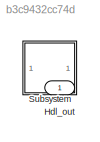
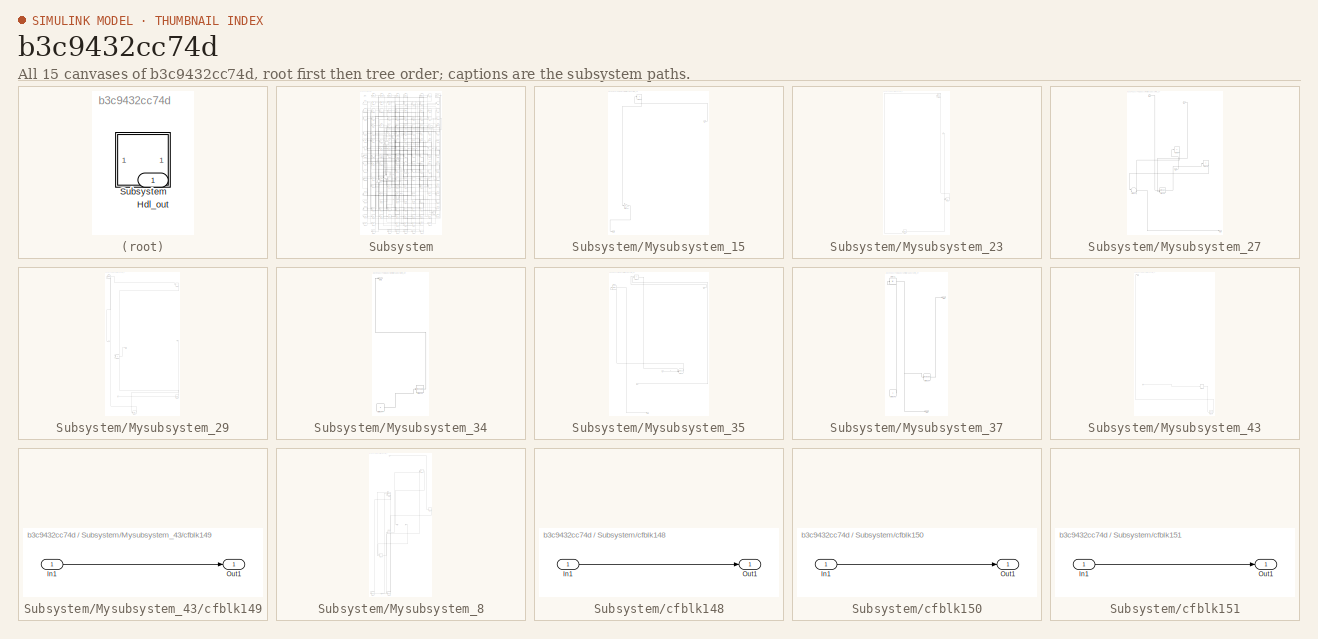
[diagram: thumbnail index - all 15 canvases of the model, root first then tree order]
MODEL slx_b3c9432cc74d
KIND model
CONFIG AbsTol = auto
CONFIG EnableMultiTasking = off
CONFIG FixedStep = auto
CONFIG MaxStep = auto
CONFIG MinStep = auto
CONFIG RelTol = 1e-3
CONFIG SampleTimeConstraint = Unconstrained
CONFIG SolverName = VariableStepAuto
CONFIG StartTime = 0.0
CONFIG StopTime = 10.0
BLOCK [Outport] Hdl_out
  OutDataTypeStr = uint8
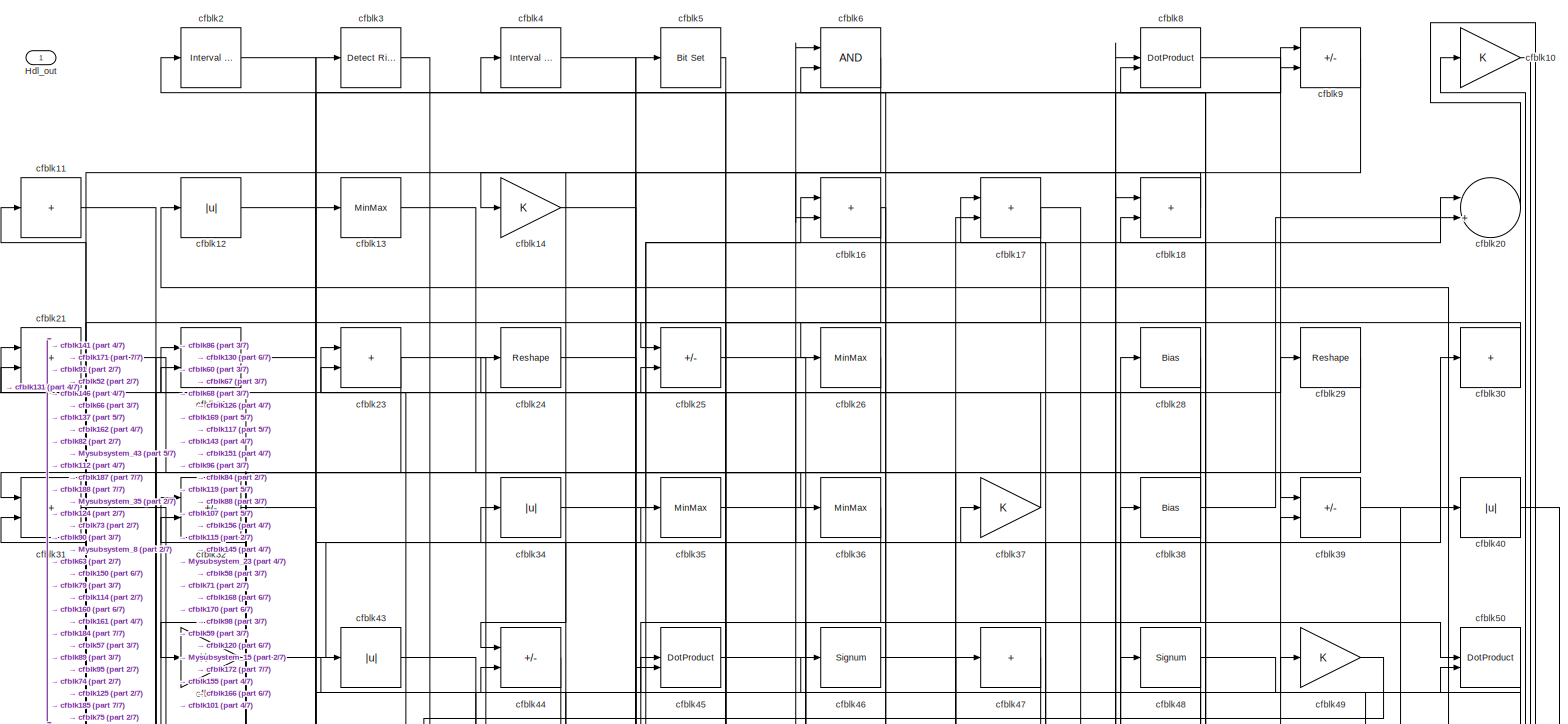
[diagram: Subsystem - part 1/7, full width, top band]
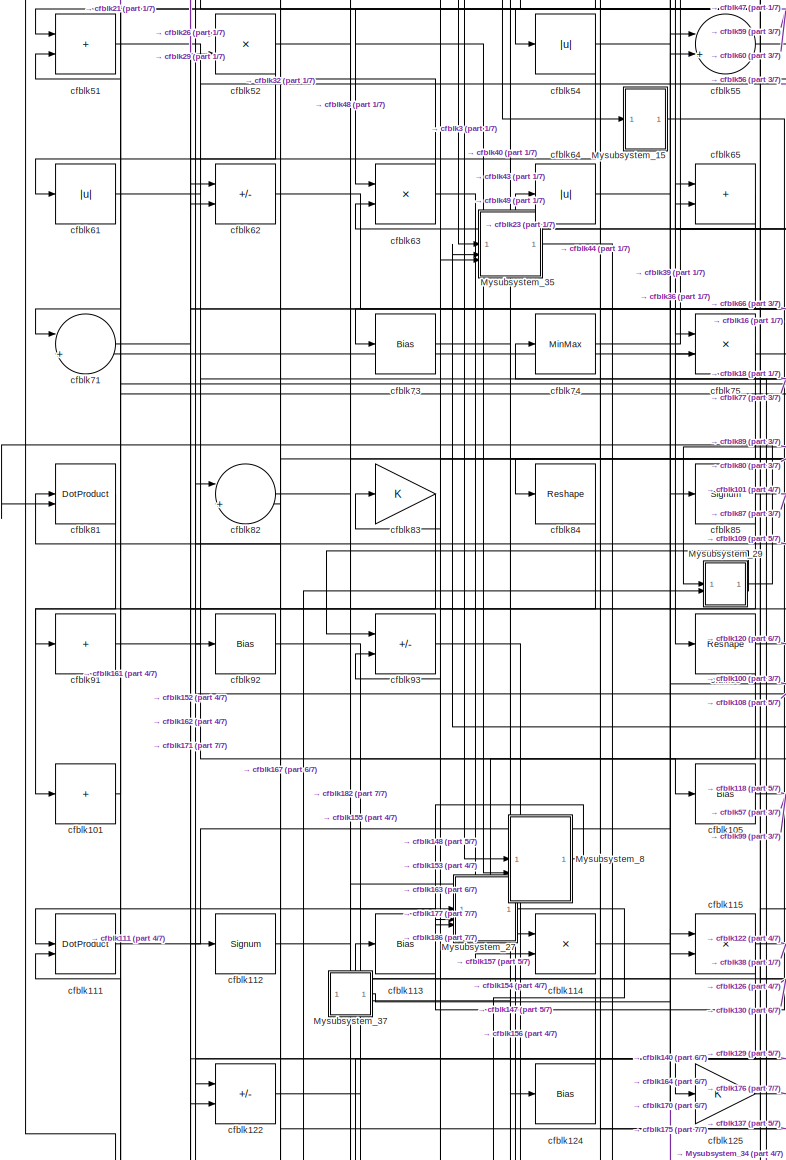
[diagram: Subsystem - part 2/7, middle left region]
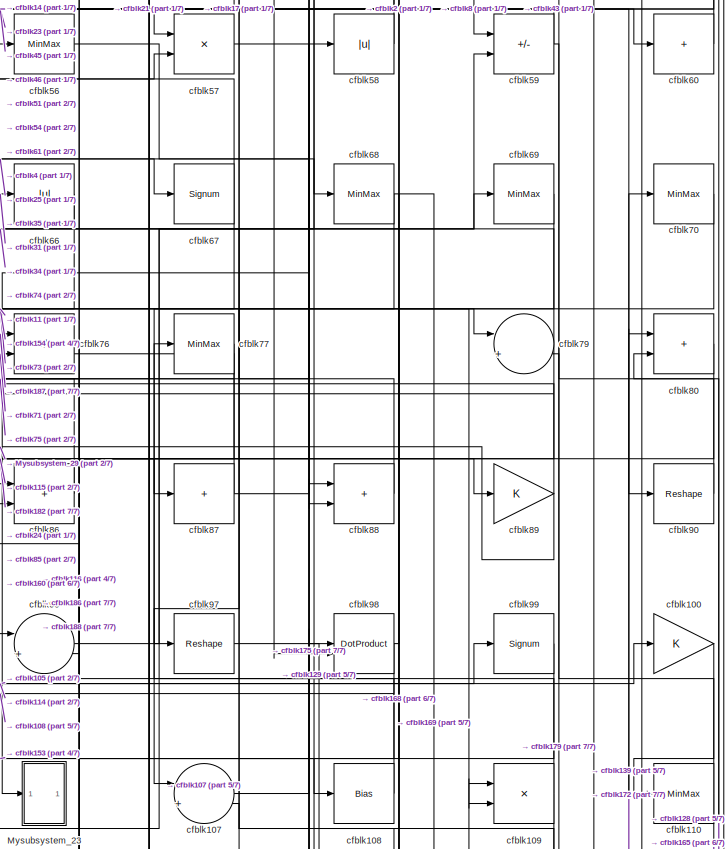
[diagram: Subsystem - part 3/7, middle right region]
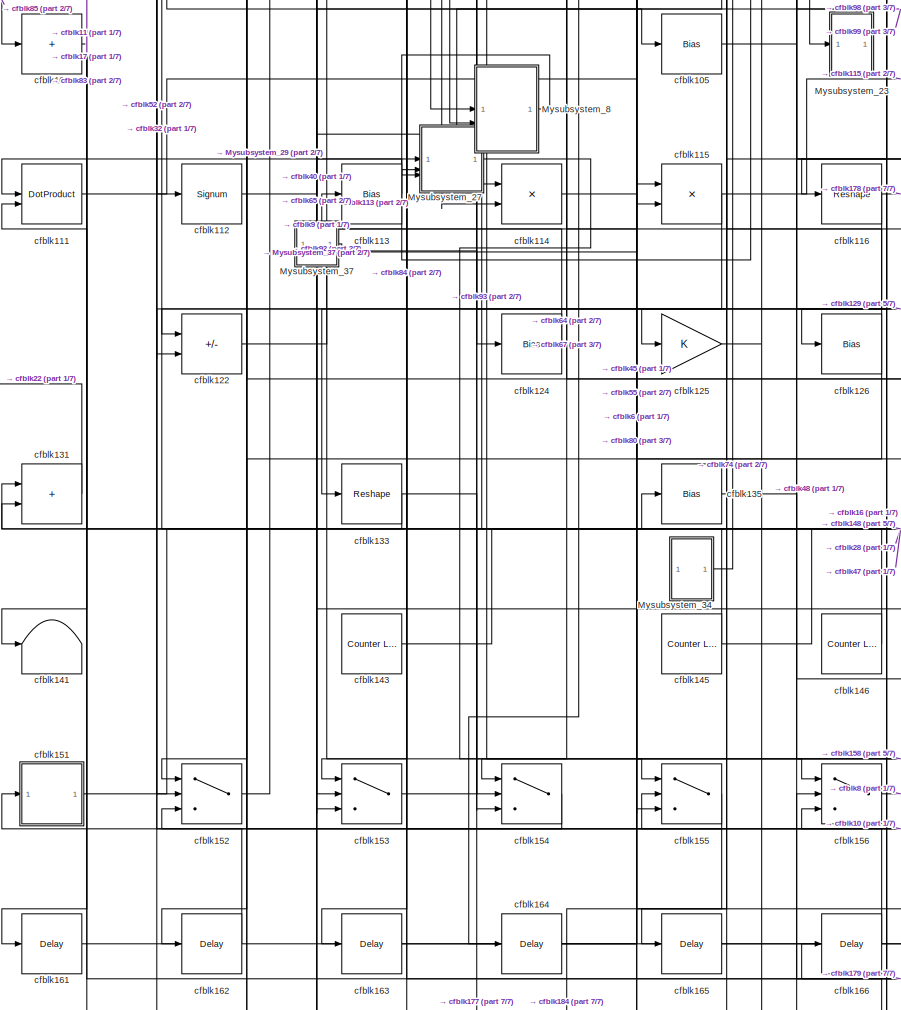
[diagram: Subsystem - part 4/7, bottom left region]
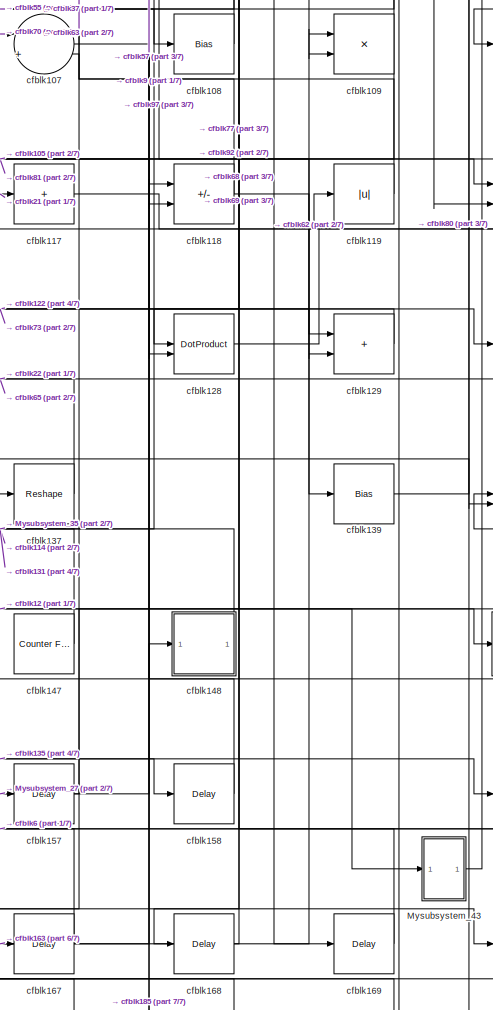
[diagram: Subsystem - part 5/7, bottom right region]
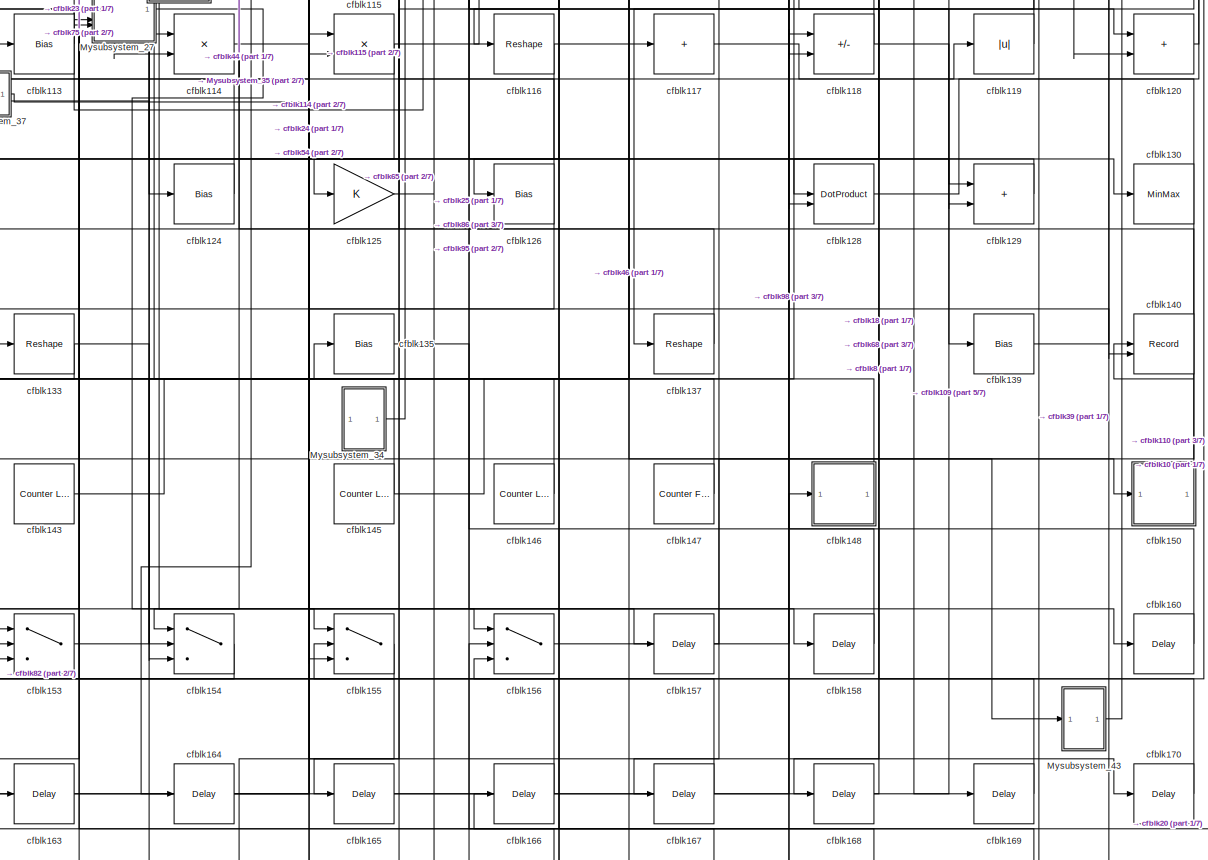
[diagram: Subsystem - part 6/7, full width, bottom band]
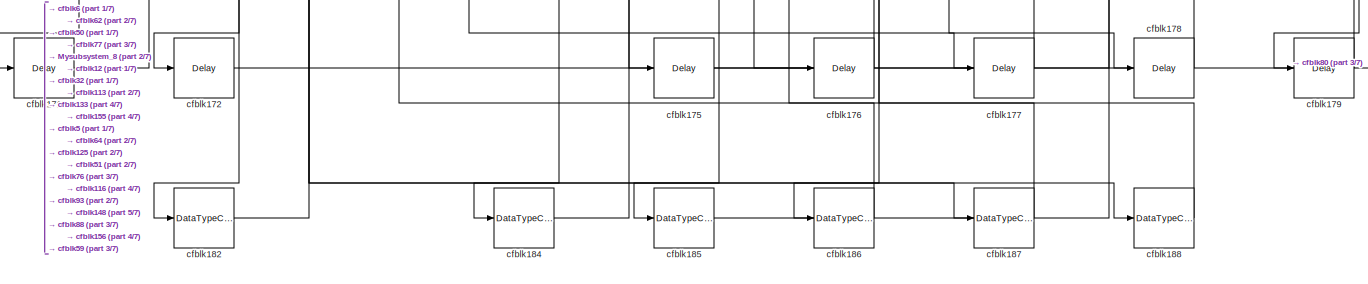
[diagram: Subsystem - part 7/7, full width, bottom band]
BLOCK [SubSystem] Subsystem
BLOCK [Outport] Subsystem/Hdl_out
  OutDataTypeStr = uint8
BLOCK [SubSystem] Subsystem/Mysubsystem_15
  RTWFcnName = Mysubsystem_15
  RTWFcnNameOpts = User specified
  RTWFileNameOpts = Use function name
  RTWSystemCode = Reusable function
  TreatAsAtomicUnit = on
BLOCK [Inport] Subsystem/Mysubsystem_15/In1
BLOCK [Outport] Subsystem/Mysubsystem_15/Out1
BLOCK [Gain] Subsystem/Mysubsystem_15/cfblk104
BLOCK [Sum] Subsystem/Mysubsystem_15/cfblk15
  IconShape = rectangular
  Inputs = +
BLOCK [SubSystem] Subsystem/Mysubsystem_23
  RTWFcnName = Mysubsystem_23
  RTWFcnNameOpts = User specified
  RTWFileNameOpts = Use function name
  RTWSystemCode = Reusable function
  TreatAsAtomicUnit = on
BLOCK [Inport] Subsystem/Mysubsystem_23/In1
BLOCK [Sum] Subsystem/Mysubsystem_23/cfblk138
  IconShape = rectangular
  Inputs = +-
BLOCK [Delay] Subsystem/Mysubsystem_23/cfblk173
  InputPortMap = u0
  SampleTime = 1
BLOCK [Reference] Subsystem/Mysubsystem_23/cfblk7  REF=hdlsllib/Logic and Bit
Operations/Interval Test
  SourceBlock = hdlsllib/Logic and Bit\nOperations/Interval Test
  SourceType = Interval Test
BLOCK [SubSystem] Subsystem/Mysubsystem_27
  RTWFcnName = Mysubsystem_27
  RTWFcnNameOpts = User specified
  RTWFileNameOpts = Use function name
  RTWSystemCode = Reusable function
  TreatAsAtomicUnit = on
BLOCK [Inport] Subsystem/Mysubsystem_27/In1
BLOCK [Inport] Subsystem/Mysubsystem_27/In2
  Port = 2
BLOCK [Inport] Subsystem/Mysubsystem_27/In3
  Port = 3
BLOCK [Outport] Subsystem/Mysubsystem_27/Out1
BLOCK [Sum] Subsystem/Mysubsystem_27/cfblk106
  IconShape = rectangular
  Inputs = +
BLOCK [Sum] Subsystem/Mysubsystem_27/cfblk121
  Inputs = |++
BLOCK [DotProduct] Subsystem/Mysubsystem_27/cfblk123
  OutDataTypeStr = Inherit: Inherit via internal rule
BLOCK [Sum] Subsystem/Mysubsystem_27/cfblk94
  IconShape = rectangular
  Inputs = +
BLOCK [SubSystem] Subsystem/Mysubsystem_29
  RTWFcnName = Mysubsystem_29
  RTWFcnNameOpts = User specified
  RTWFileNameOpts = Use function name
  RTWSystemCode = Reusable function
  TreatAsAtomicUnit = on
BLOCK [Inport] Subsystem/Mysubsystem_29/In1
BLOCK [Inport] Subsystem/Mysubsystem_29/In2
  Port = 2
BLOCK [Outport] Subsystem/Mysubsystem_29/Out2
  Port = 2
BLOCK [Reference] Subsystem/Mysubsystem_29/cfblk1  REF=simulink/Logic and Bit
Operations/Extract Bits
  LibrarySourceBlock = hdlsllib/Logic and Bit\nOperations/Extract Bits
  SourceBlock = simulink/Logic and Bit\nOperations/Extract Bits
  SourceType = Extract Bits
BLOCK [Sum] Subsystem/Mysubsystem_29/cfblk102
  IconShape = rectangular
  Inputs = +-
BLOCK [Delay] Subsystem/Mysubsystem_29/cfblk159
  InputPortMap = u0
  SampleTime = 1
BLOCK [Delay] Subsystem/Mysubsystem_29/cfblk174
  InputPortMap = u0
  SampleTime = 1
BLOCK [Sum] Subsystem/Mysubsystem_29/cfblk19
  IconShape = rectangular
  Inputs = +
BLOCK [Outport] Subsystem/Mysubsystem_29/y
BLOCK [SubSystem] Subsystem/Mysubsystem_34
  RTWFcnName = Mysubsystem_34
  RTWFcnNameOpts = User specified
  RTWFileNameOpts = Use function name
  RTWSystemCode = Reusable function
  TreatAsAtomicUnit = on
BLOCK [Outport] Subsystem/Mysubsystem_34/Out1
BLOCK [Reshape] Subsystem/Mysubsystem_34/cfblk136
BLOCK [Constant] Subsystem/Mysubsystem_34/cfblk144
  SampleTime = -1
BLOCK [SubSystem] Subsystem/Mysubsystem_35
  RTWFcnName = Mysubsystem_35
  RTWFcnNameOpts = User specified
  RTWFileNameOpts = Use function name
  RTWSystemCode = Reusable function
  TreatAsAtomicUnit = on
BLOCK [Inport] Subsystem/Mysubsystem_35/In1
BLOCK [Inport] Subsystem/Mysubsystem_35/In2
  Port = 2
BLOCK [Inport] Subsystem/Mysubsystem_35/In3
  Port = 3
BLOCK [Outport] Subsystem/Mysubsystem_35/Out1
BLOCK [DotProduct] Subsystem/Mysubsystem_35/cfblk127
  OutDataTypeStr = Inherit: Inherit via internal rule
BLOCK [Sum] Subsystem/Mysubsystem_35/cfblk33
  IconShape = rectangular
BLOCK [MinMax] Subsystem/Mysubsystem_35/cfblk41
BLOCK [SubSystem] Subsystem/Mysubsystem_37
  RTWFcnName = Mysubsystem_37
  RTWFcnNameOpts = User specified
  RTWFileNameOpts = Use function name
  RTWSystemCode = Reusable function
  TreatAsAtomicUnit = on
BLOCK [Outport] Subsystem/Mysubsystem_37/Out1
BLOCK [Outport] Subsystem/Mysubsystem_37/Out2
  Port = 2
BLOCK [Reshape] Subsystem/Mysubsystem_37/cfblk134
BLOCK [Constant] Subsystem/Mysubsystem_37/cfblk142
  SampleTime = -1
BLOCK [Abs] Subsystem/Mysubsystem_37/cfblk72
  SaturateOnIntegerOverflow = off
BLOCK [SubSystem] Subsystem/Mysubsystem_43
  RTWFcnName = Mysubsystem_43
  RTWFcnNameOpts = User specified
  RTWFileNameOpts = Use function name
  RTWSystemCode = Reusable function
  TreatAsAtomicUnit = on
BLOCK [Inport] Subsystem/Mysubsystem_43/In1
BLOCK [Outport] Subsystem/Mysubsystem_43/Out1
BLOCK [SubSystem] Subsystem/Mysubsystem_43/cfblk149
  LibrarySourceBlock = hdlsllib/Ports &\nSubsystems/Subsystem
BLOCK [Inport] Subsystem/Mysubsystem_43/cfblk149/In1
BLOCK [Outport] Subsystem/Mysubsystem_43/cfblk149/Out1
BLOCK [Delay] Subsystem/Mysubsystem_43/cfblk180
  InputPortMap = u0
  SampleTime = 1
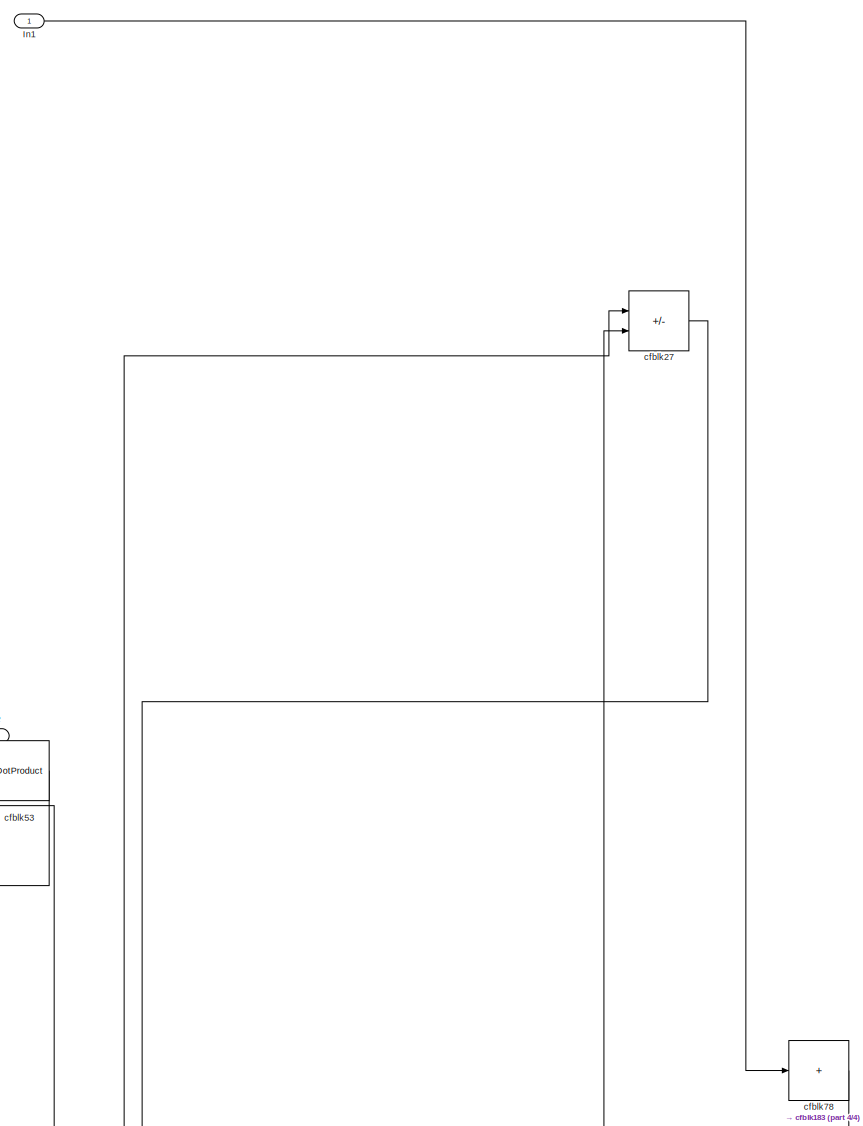
[diagram: Subsystem/Mysubsystem_8 - part 1/4, top center region]
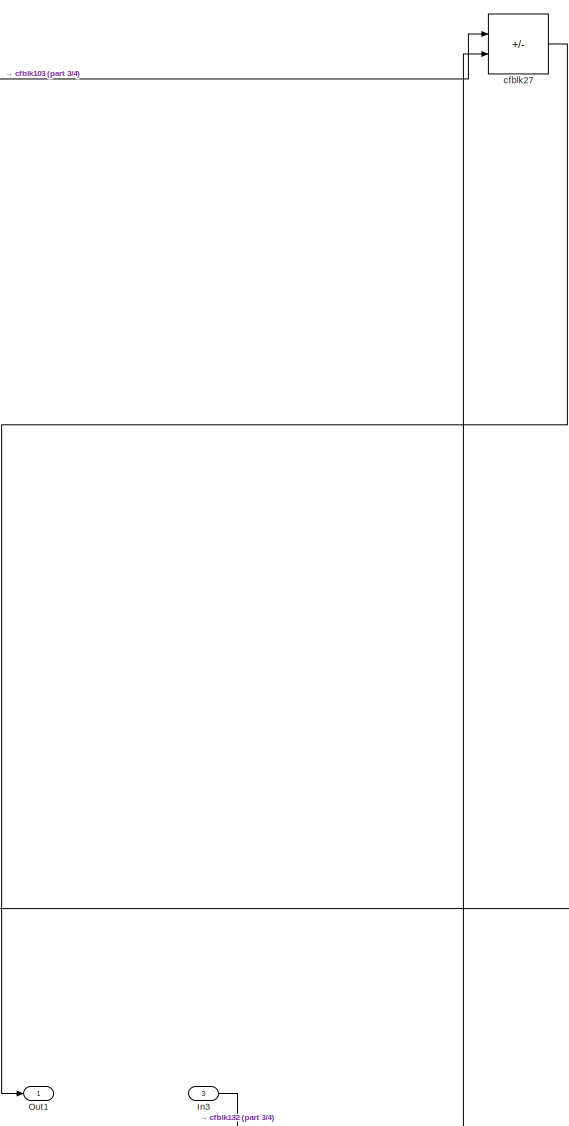
[diagram: Subsystem/Mysubsystem_8 - part 2/4, top center region]
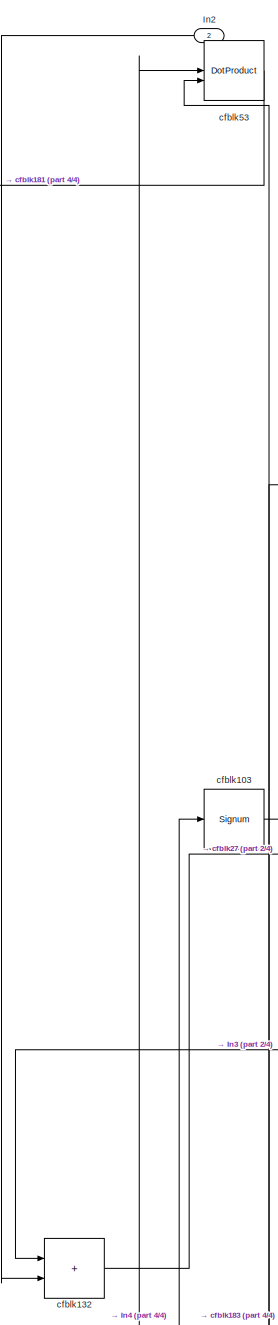
[diagram: Subsystem/Mysubsystem_8 - part 3/4, middle left region]
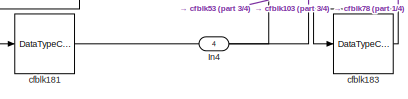
[diagram: Subsystem/Mysubsystem_8 - part 4/4, bottom left region]
BLOCK [SubSystem] Subsystem/Mysubsystem_8
  RTWFcnName = Mysubsystem_8
  RTWFcnNameOpts = User specified
  RTWFileNameOpts = Use function name
  RTWSystemCode = Reusable function
  TreatAsAtomicUnit = on
BLOCK [Inport] Subsystem/Mysubsystem_8/In1
BLOCK [Inport] Subsystem/Mysubsystem_8/In2
  Port = 2
BLOCK [Inport] Subsystem/Mysubsystem_8/In3
  Port = 3
BLOCK [Inport] Subsystem/Mysubsystem_8/In4
  Port = 4
BLOCK [Outport] Subsystem/Mysubsystem_8/Out1
BLOCK [Signum] Subsystem/Mysubsystem_8/cfblk103
BLOCK [Sum] Subsystem/Mysubsystem_8/cfblk132
  IconShape = rectangular
BLOCK [DataTypeConversion] Subsystem/Mysubsystem_8/cfblk181
  OutDataTypeStr = uint8
  RndMeth = Floor
  SaturateOnIntegerOverflow = off
BLOCK [DataTypeConversion] Subsystem/Mysubsystem_8/cfblk183
  OutDataTypeStr = uint8
  RndMeth = Floor
  SaturateOnIntegerOverflow = off
BLOCK [Sum] Subsystem/Mysubsystem_8/cfblk27
  IconShape = rectangular
  Inputs = +-
BLOCK [DotProduct] Subsystem/Mysubsystem_8/cfblk53
  OutDataTypeStr = Inherit: Inherit via internal rule
BLOCK [Sum] Subsystem/Mysubsystem_8/cfblk78
  IconShape = rectangular
  Inputs = +
BLOCK [Gain] Subsystem/cfblk10
  OutDataTypeStr = uint8
BLOCK [Gain] Subsystem/cfblk100
  OutDataTypeStr = uint8
BLOCK [Sum] Subsystem/cfblk101
  IconShape = rectangular
  Inputs = +
  OutDataTypeStr = uint8
BLOCK [Bias] Subsystem/cfblk105
  Bias = 0.0
  SaturateOnIntegerOverflow = off
BLOCK [Sum] Subsystem/cfblk107
  Inputs = |++
  OutDataTypeStr = uint8
BLOCK [Bias] Subsystem/cfblk108
  Bias = 0.0
  SaturateOnIntegerOverflow = off
BLOCK [Product] Subsystem/cfblk109
  Inputs = */
  OutDataTypeStr = uint8
  RndMeth = Zero
  SaturateOnIntegerOverflow = on
BLOCK [Sum] Subsystem/cfblk11
  IconShape = rectangular
  Inputs = +
  OutDataTypeStr = uint8
BLOCK [MinMax] Subsystem/cfblk110
  OutDataTypeStr = uint8
BLOCK [DotProduct] Subsystem/cfblk111
  OutDataTypeStr = uint8
BLOCK [Signum] Subsystem/cfblk112
BLOCK [Bias] Subsystem/cfblk113
  Bias = 0.0
  SaturateOnIntegerOverflow = off
BLOCK [Product] Subsystem/cfblk114
  Inputs = */
  OutDataTypeStr = uint8
  RndMeth = Zero
  SaturateOnIntegerOverflow = on
BLOCK [Product] Subsystem/cfblk115
  Inputs = */
  OutDataTypeStr = uint8
  RndMeth = Zero
  SaturateOnIntegerOverflow = on
BLOCK [Reshape] Subsystem/cfblk116
BLOCK [Sum] Subsystem/cfblk117
  IconShape = rectangular
  Inputs = +
  OutDataTypeStr = uint8
BLOCK [Sum] Subsystem/cfblk118
  IconShape = rectangular
  Inputs = +-
  OutDataTypeStr = uint8
BLOCK [Abs] Subsystem/cfblk119
  OutDataTypeStr = uint8
  SaturateOnIntegerOverflow = off
BLOCK [Abs] Subsystem/cfblk12
  OutDataTypeStr = uint8
  SaturateOnIntegerOverflow = off
BLOCK [Sum] Subsystem/cfblk120
  IconShape = rectangular
  OutDataTypeStr = uint8
BLOCK [Sum] Subsystem/cfblk122
  IconShape = rectangular
  Inputs = +-
  OutDataTypeStr = uint8
BLOCK [Bias] Subsystem/cfblk124
  Bias = 0.0
  SaturateOnIntegerOverflow = off
BLOCK [Gain] Subsystem/cfblk125
  OutDataTypeStr = uint8
BLOCK [Bias] Subsystem/cfblk126
  Bias = 0.0
  SaturateOnIntegerOverflow = off
BLOCK [DotProduct] Subsystem/cfblk128
  OutDataTypeStr = uint8
BLOCK [Sum] Subsystem/cfblk129
  IconShape = rectangular
  OutDataTypeStr = uint8
BLOCK [MinMax] Subsystem/cfblk13
  OutDataTypeStr = uint8
BLOCK [MinMax] Subsystem/cfblk130
  OutDataTypeStr = uint8
BLOCK [Sum] Subsystem/cfblk131
  IconShape = rectangular
  OutDataTypeStr = uint8
BLOCK [Reshape] Subsystem/cfblk133
BLOCK [Bias] Subsystem/cfblk135
  Bias = 0.0
  SaturateOnIntegerOverflow = off
BLOCK [Reshape] Subsystem/cfblk137
BLOCK [Bias] Subsystem/cfblk139
  Bias = 0.0
  SaturateOnIntegerOverflow = off
BLOCK [Gain] Subsystem/cfblk14
  OutDataTypeStr = uint8
BLOCK [Record] Subsystem/cfblk140
  CompatibilityTag = XY
  FileSettingsInternal = {"entries":[{"content":{"excelSettings":{"content":{},"type":"Streamout.ExcelSettings"}},"type":"Streamout.FileSettingStorage","uuid":""}],"packageUris":["http:\/\/schema.mathworks.com\/mf0\/streamout_blocks\/R2020a"],"version":"1.0"}
  Layout = [1 1]
  SignalsInternal = {"entries":[{"content":{"signals":[{"content":{"blockPath":[],"dimensions":[1],"domain":"","lineColor":"#a2142f","plots":[1],"port":1,"signalID":59444,"signalName":"cfblk150"},"type":"RecordBlkView.Signal","uuid":""},{"content":{"blockPath":[],"dimensions":[1],"domain":"","lineColor":"#139fff","plots":[1],"port":2,"signalID":59447,"signalName":"cfblk54"},"type":"RecordBlkView.Signal","uuid":""}]},...<+143ch>
  VisualizationBindings = {"xyplotplugin":{"info":[{"series":[{"bindingParametersList":[{"parameter":"X-Axis","signalID":59444,"signalName":"cfblk150"},{"parameter":"Y-Axis","signalID":59447,"signalName":"cfblk54"}],"seriesID":10474}],"subplotID":1}]}}
  st = -1
BLOCK [Terminator] Subsystem/cfblk141
BLOCK [Reference] Subsystem/cfblk143  REF=hdlsllib/Sources/Counter
Limited
  SourceBlock = hdlsllib/Sources/Counter\nLimited
  SourceType = Counter Limited
BLOCK [Reference] Subsystem/cfblk145  REF=hdlsllib/Sources/Counter
Limited
  SourceBlock = hdlsllib/Sources/Counter\nLimited
  SourceType = Counter Limited
BLOCK [Reference] Subsystem/cfblk146  REF=hdlsllib/Sources/Counter
Limited
  SourceBlock = hdlsllib/Sources/Counter\nLimited
  SourceType = Counter Limited
BLOCK [Reference] Subsystem/cfblk147  REF=hdlsllib/Sources/Counter
Free-Running
  SourceBlock = hdlsllib/Sources/Counter\nFree-Running
  SourceType = Counter Free-Running
BLOCK [SubSystem] Subsystem/cfblk148
  LibrarySourceBlock = hdlsllib/Ports &\nSubsystems/Subsystem
BLOCK [Inport] Subsystem/cfblk148/In1
BLOCK [Outport] Subsystem/cfblk148/Out1
BLOCK [SubSystem] Subsystem/cfblk150
  LibrarySourceBlock = hdlsllib/Ports &\nSubsystems/Subsystem
BLOCK [Inport] Subsystem/cfblk150/In1
BLOCK [Outport] Subsystem/cfblk150/Out1
BLOCK [SubSystem] Subsystem/cfblk151
  LibrarySourceBlock = hdlsllib/Ports &\nSubsystems/Subsystem
BLOCK [Inport] Subsystem/cfblk151/In1
BLOCK [Outport] Subsystem/cfblk151/Out1
BLOCK [Switch] Subsystem/cfblk152
  InputSameDT = off
  OutDataTypeStr = uint8
  SaturateOnIntegerOverflow = off
BLOCK [Switch] Subsystem/cfblk153
  InputSameDT = off
  OutDataTypeStr = uint8
  SaturateOnIntegerOverflow = off
BLOCK [Switch] Subsystem/cfblk154
  InputSameDT = off
  OutDataTypeStr = uint8
  SaturateOnIntegerOverflow = off
BLOCK [Switch] Subsystem/cfblk155
  InputSameDT = off
  OutDataTypeStr = uint8
  SaturateOnIntegerOverflow = off
BLOCK [Switch] Subsystem/cfblk156
  InputSameDT = off
  OutDataTypeStr = uint8
  SaturateOnIntegerOverflow = off
BLOCK [Delay] Subsystem/cfblk157
  InputPortMap = u0
  SampleTime = 1
BLOCK [Delay] Subsystem/cfblk158
  InputPortMap = u0
  SampleTime = 1
BLOCK [Sum] Subsystem/cfblk16
  IconShape = rectangular
  OutDataTypeStr = uint8
BLOCK [Delay] Subsystem/cfblk160
  InputPortMap = u0
  SampleTime = 1
BLOCK [Delay] Subsystem/cfblk161
  InputPortMap = u0
  SampleTime = 1
BLOCK [Delay] Subsystem/cfblk162
  InputPortMap = u0
  SampleTime = 1
BLOCK [Delay] Subsystem/cfblk163
  InputPortMap = u0
  SampleTime = 1
BLOCK [Delay] Subsystem/cfblk164
  InputPortMap = u0
  SampleTime = 1
BLOCK [Delay] Subsystem/cfblk165
  InputPortMap = u0
  SampleTime = 1
BLOCK [Delay] Subsystem/cfblk166
  InputPortMap = u0
  SampleTime = 1
BLOCK [Delay] Subsystem/cfblk167
  InputPortMap = u0
  SampleTime = 1
BLOCK [Delay] Subsystem/cfblk168
  InputPortMap = u0
  SampleTime = 1
BLOCK [Delay] Subsystem/cfblk169
  InputPortMap = u0
  SampleTime = 1
BLOCK [Sum] Subsystem/cfblk17
  IconShape = rectangular
  OutDataTypeStr = uint8
BLOCK [Delay] Subsystem/cfblk170
  InputPortMap = u0
  SampleTime = 1
BLOCK [Delay] Subsystem/cfblk171
  InputPortMap = u0
  SampleTime = 1
BLOCK [Delay] Subsystem/cfblk172
  InputPortMap = u0
  SampleTime = 1
BLOCK [Delay] Subsystem/cfblk175
  InputPortMap = u0
  SampleTime = 1
BLOCK [Delay] Subsystem/cfblk176
  InputPortMap = u0
  SampleTime = 1
BLOCK [Delay] Subsystem/cfblk177
  InputPortMap = u0
  SampleTime = 1
BLOCK [Delay] Subsystem/cfblk178
  InputPortMap = u0
  SampleTime = 1
BLOCK [Delay] Subsystem/cfblk179
  InputPortMap = u0
  SampleTime = 1
BLOCK [Sum] Subsystem/cfblk18
  IconShape = rectangular
  OutDataTypeStr = uint8
BLOCK [DataTypeConversion] Subsystem/cfblk182
  OutDataTypeStr = uint8
  RndMeth = Floor
  SaturateOnIntegerOverflow = off
BLOCK [DataTypeConversion] Subsystem/cfblk184
  OutDataTypeStr = uint8
  RndMeth = Floor
  SaturateOnIntegerOverflow = off
BLOCK [DataTypeConversion] Subsystem/cfblk185
  OutDataTypeStr = uint8
  RndMeth = Floor
  SaturateOnIntegerOverflow = off
BLOCK [DataTypeConversion] Subsystem/cfblk186
  OutDataTypeStr = uint8
  RndMeth = Floor
  SaturateOnIntegerOverflow = off
BLOCK [DataTypeConversion] Subsystem/cfblk187
  OutDataTypeStr = uint8
  RndMeth = Floor
  SaturateOnIntegerOverflow = off
BLOCK [DataTypeConversion] Subsystem/cfblk188
  OutDataTypeStr = uint8
  RndMeth = Floor
  SaturateOnIntegerOverflow = off
BLOCK [Reference] Subsystem/cfblk2  REF=hdlsllib/Logic and Bit
Operations/Interval Test
  SourceBlock = hdlsllib/Logic and Bit\nOperations/Interval Test
  SourceType = Interval Test
BLOCK [Sum] Subsystem/cfblk20
  Inputs = |++
  OutDataTypeStr = uint8
BLOCK [Sum] Subsystem/cfblk21
  IconShape = rectangular
  OutDataTypeStr = uint8
BLOCK [Sum] Subsystem/cfblk22
  IconShape = rectangular
  Inputs = +-
  OutDataTypeStr = uint8
BLOCK [Sum] Subsystem/cfblk23
  IconShape = rectangular
  OutDataTypeStr = uint8
BLOCK [Reshape] Subsystem/cfblk24
BLOCK [Sum] Subsystem/cfblk25
  IconShape = rectangular
  Inputs = +-
  OutDataTypeStr = uint8
BLOCK [MinMax] Subsystem/cfblk26
  OutDataTypeStr = uint8
BLOCK [Bias] Subsystem/cfblk28
  Bias = 0.0
  SaturateOnIntegerOverflow = off
BLOCK [Reshape] Subsystem/cfblk29
BLOCK [Reference] Subsystem/cfblk3  REF=hdlsllib/Logic and Bit
Operations/Detect Rise
Nonnegative
  SourceBlock = hdlsllib/Logic and Bit\nOperations/Detect Rise\nNonnegative
  SourceType = Detect Rise Nonnegative
BLOCK [Sum] Subsystem/cfblk30
  IconShape = rectangular
  Inputs = +
  OutDataTypeStr = uint8
BLOCK [Sum] Subsystem/cfblk31
  IconShape = rectangular
  OutDataTypeStr = uint8
BLOCK [Sum] Subsystem/cfblk32
  IconShape = rectangular
  Inputs = +-
  OutDataTypeStr = uint8
BLOCK [Abs] Subsystem/cfblk34
  OutDataTypeStr = uint8
  SaturateOnIntegerOverflow = off
BLOCK [MinMax] Subsystem/cfblk35
  OutDataTypeStr = uint8
BLOCK [MinMax] Subsystem/cfblk36
  OutDataTypeStr = uint8
BLOCK [Gain] Subsystem/cfblk37
  OutDataTypeStr = uint8
BLOCK [Bias] Subsystem/cfblk38
  Bias = 0.0
  SaturateOnIntegerOverflow = off
BLOCK [Sum] Subsystem/cfblk39
  IconShape = rectangular
  Inputs = +-
  OutDataTypeStr = uint8
BLOCK [Reference] Subsystem/cfblk4  REF=hdlsllib/Logic and Bit
Operations/Interval Test
  SourceBlock = hdlsllib/Logic and Bit\nOperations/Interval Test
  SourceType = Interval Test
BLOCK [Abs] Subsystem/cfblk40
  OutDataTypeStr = uint8
  SaturateOnIntegerOverflow = off
BLOCK [Gain] Subsystem/cfblk42
  OutDataTypeStr = uint8
BLOCK [Abs] Subsystem/cfblk43
  OutDataTypeStr = uint8
  SaturateOnIntegerOverflow = off
BLOCK [Sum] Subsystem/cfblk44
  IconShape = rectangular
  Inputs = +-
  OutDataTypeStr = uint8
BLOCK [DotProduct] Subsystem/cfblk45
  OutDataTypeStr = uint8
BLOCK [Signum] Subsystem/cfblk46
BLOCK [Sum] Subsystem/cfblk47
  IconShape = rectangular
  Inputs = +
  OutDataTypeStr = uint8
BLOCK [Signum] Subsystem/cfblk48
BLOCK [Gain] Subsystem/cfblk49
  OutDataTypeStr = uint8
BLOCK [Reference] Subsystem/cfblk5  REF=simulink/Logic and Bit
Operations/Bit Set
  LibrarySourceBlock = hdlsllib/Logic and Bit\nOperations/Bit Set
  SourceBlock = simulink/Logic and Bit\nOperations/Bit Set
  SourceType = Bit Set
BLOCK [DotProduct] Subsystem/cfblk50
  OutDataTypeStr = uint8
BLOCK [Sum] Subsystem/cfblk51
  IconShape = rectangular
  OutDataTypeStr = uint8
BLOCK [Product] Subsystem/cfblk52
  Inputs = */
  OutDataTypeStr = uint8
  RndMeth = Zero
  SaturateOnIntegerOverflow = on
BLOCK [Abs] Subsystem/cfblk54
  OutDataTypeStr = uint8
  SaturateOnIntegerOverflow = off
BLOCK [Sum] Subsystem/cfblk55
  Inputs = |++
  OutDataTypeStr = uint8
BLOCK [MinMax] Subsystem/cfblk56
  OutDataTypeStr = uint8
BLOCK [Product] Subsystem/cfblk57
  Inputs = */
  OutDataTypeStr = uint8
  RndMeth = Zero
  SaturateOnIntegerOverflow = on
BLOCK [Abs] Subsystem/cfblk58
  OutDataTypeStr = uint8
  SaturateOnIntegerOverflow = off
BLOCK [Sum] Subsystem/cfblk59
  IconShape = rectangular
  Inputs = +-
  OutDataTypeStr = uint8
BLOCK [Logic] Subsystem/cfblk6
  AllPortsSameDT = off
  OutDataTypeStr = boolean
BLOCK [Sum] Subsystem/cfblk60
  IconShape = rectangular
  Inputs = +
  OutDataTypeStr = uint8
BLOCK [Abs] Subsystem/cfblk61
  OutDataTypeStr = uint8
  SaturateOnIntegerOverflow = off
BLOCK [Sum] Subsystem/cfblk62
  IconShape = rectangular
  Inputs = +-
  OutDataTypeStr = uint8
BLOCK [Product] Subsystem/cfblk63
  Inputs = */
  OutDataTypeStr = uint8
  RndMeth = Zero
  SaturateOnIntegerOverflow = on
BLOCK [Abs] Subsystem/cfblk64
  OutDataTypeStr = uint8
  SaturateOnIntegerOverflow = off
BLOCK [Sum] Subsystem/cfblk65
  IconShape = rectangular
  OutDataTypeStr = uint8
BLOCK [Abs] Subsystem/cfblk66
  OutDataTypeStr = uint8
  SaturateOnIntegerOverflow = off
BLOCK [Signum] Subsystem/cfblk67
BLOCK [MinMax] Subsystem/cfblk68
  OutDataTypeStr = uint8
BLOCK [MinMax] Subsystem/cfblk69
  OutDataTypeStr = uint8
BLOCK [MinMax] Subsystem/cfblk70
  OutDataTypeStr = uint8
BLOCK [Sum] Subsystem/cfblk71
  Inputs = |++
  OutDataTypeStr = uint8
BLOCK [Bias] Subsystem/cfblk73
  Bias = 0.0
  SaturateOnIntegerOverflow = off
BLOCK [MinMax] Subsystem/cfblk74
  OutDataTypeStr = uint8
BLOCK [Product] Subsystem/cfblk75
  Inputs = */
  OutDataTypeStr = uint8
  RndMeth = Zero
  SaturateOnIntegerOverflow = on
BLOCK [Sum] Subsystem/cfblk76
  IconShape = rectangular
  Inputs = +-
  OutDataTypeStr = uint8
BLOCK [MinMax] Subsystem/cfblk77
  OutDataTypeStr = uint8
BLOCK [Sum] Subsystem/cfblk79
  Inputs = |++
  OutDataTypeStr = uint8
BLOCK [DotProduct] Subsystem/cfblk8
  OutDataTypeStr = uint8
BLOCK [Sum] Subsystem/cfblk80
  IconShape = rectangular
  OutDataTypeStr = uint8
BLOCK [DotProduct] Subsystem/cfblk81
  OutDataTypeStr = uint8
BLOCK [Sum] Subsystem/cfblk82
  Inputs = |++
  OutDataTypeStr = uint8
BLOCK [Gain] Subsystem/cfblk83
  OutDataTypeStr = uint8
BLOCK [Reshape] Subsystem/cfblk84
BLOCK [Signum] Subsystem/cfblk85
BLOCK [Sum] Subsystem/cfblk86
  IconShape = rectangular
  OutDataTypeStr = uint8
BLOCK [Sum] Subsystem/cfblk87
  IconShape = rectangular
  Inputs = +
  OutDataTypeStr = uint8
BLOCK [Sum] Subsystem/cfblk88
  IconShape = rectangular
  OutDataTypeStr = uint8
BLOCK [Gain] Subsystem/cfblk89
  OutDataTypeStr = uint8
BLOCK [Sum] Subsystem/cfblk9
  IconShape = rectangular
  Inputs = +-
  OutDataTypeStr = uint8
BLOCK [Reshape] Subsystem/cfblk90
BLOCK [Sum] Subsystem/cfblk91
  IconShape = rectangular
  Inputs = +
  OutDataTypeStr = uint8
BLOCK [Bias] Subsystem/cfblk92
  Bias = 0.0
  SaturateOnIntegerOverflow = off
BLOCK [Sum] Subsystem/cfblk93
  IconShape = rectangular
  Inputs = +-
  OutDataTypeStr = uint8
BLOCK [Reshape] Subsystem/cfblk95
BLOCK [Sum] Subsystem/cfblk96
  Inputs = |++
  OutDataTypeStr = uint8
BLOCK [Reshape] Subsystem/cfblk97
BLOCK [DotProduct] Subsystem/cfblk98
  OutDataTypeStr = uint8
BLOCK [Signum] Subsystem/cfblk99
LINE Subsystem/Mysubsystem_15/In1:1 -> Subsystem/Mysubsystem_15/cfblk15:1
LINE Subsystem/Mysubsystem_15/cfblk104:1 -> Subsystem/Mysubsystem_15/Out1:1
LINE Subsystem/Mysubsystem_15/cfblk15:1 -> Subsystem/Mysubsystem_15/cfblk104:1
LINE Subsystem/Mysubsystem_15:1 -> Subsystem/Mysubsystem_27:2
LINE Subsystem/Mysubsystem_23/In1:1 -> Subsystem/Mysubsystem_23/cfblk138:2
LINE Subsystem/Mysubsystem_23/cfblk138:1 -> Subsystem/Mysubsystem_23/cfblk7:1
LINE Subsystem/Mysubsystem_23/cfblk173:1 -> Subsystem/Mysubsystem_23/cfblk138:1
LINE Subsystem/Mysubsystem_23/cfblk7:1 -> Subsystem/Mysubsystem_23/cfblk173:1
LINE Subsystem/Mysubsystem_27/In1:1 -> Subsystem/Mysubsystem_27/cfblk123:1
LINE Subsystem/Mysubsystem_27/In2:1 -> Subsystem/Mysubsystem_27/cfblk123:2
LINE Subsystem/Mysubsystem_27/In3:1 -> Subsystem/Mysubsystem_27/cfblk94:1
LINE Subsystem/Mysubsystem_27/cfblk106:1 -> Subsystem/Mysubsystem_27/cfblk121:1
LINE Subsystem/Mysubsystem_27/cfblk121:1 -> Subsystem/Mysubsystem_27/Out1:1
LINE Subsystem/Mysubsystem_27/cfblk123:1 -> Subsystem/Mysubsystem_27/cfblk106:1
LINE Subsystem/Mysubsystem_27/cfblk94:1 -> Subsystem/Mysubsystem_27/cfblk121:2
LINE Subsystem/Mysubsystem_27:1 -> Subsystem/cfblk157:1
LINE Subsystem/Mysubsystem_29/In1:1 -> Subsystem/Mysubsystem_29/cfblk174:1
LINE Subsystem/Mysubsystem_29/In2:1 -> Subsystem/Mysubsystem_29/cfblk159:1
LINE Subsystem/Mysubsystem_29/cfblk102:1 -> Subsystem/Mysubsystem_29/Out2:1
LINE Subsystem/Mysubsystem_29/cfblk159:1 -> Subsystem/Mysubsystem_29/cfblk102:2
LINE Subsystem/Mysubsystem_29/cfblk174:1 -> Subsystem/Mysubsystem_29/cfblk1:1
LINE Subsystem/Mysubsystem_29/cfblk19:1 -> Subsystem/Mysubsystem_29/cfblk102:1
NET Subsystem/Mysubsystem_29/cfblk1:1 -> Subsystem/Mysubsystem_29/cfblk19:1, Subsystem/Mysubsystem_29/y:1
LINE Subsystem/Mysubsystem_29:1 -> Subsystem/cfblk81:2
LINE Subsystem/Mysubsystem_29:2 -> Subsystem/cfblk93:1
LINE Subsystem/Mysubsystem_34/cfblk136:1 -> Subsystem/Mysubsystem_34/Out1:1
LINE Subsystem/Mysubsystem_34/cfblk144:1 -> Subsystem/Mysubsystem_34/cfblk136:1
LINE Subsystem/Mysubsystem_34:1 -> Subsystem/cfblk74:1
LINE Subsystem/Mysubsystem_35/In1:1 -> Subsystem/Mysubsystem_35/cfblk33:1
LINE Subsystem/Mysubsystem_35/In2:1 -> Subsystem/Mysubsystem_35/cfblk127:1
LINE Subsystem/Mysubsystem_35/In3:1 -> Subsystem/Mysubsystem_35/cfblk33:2
LINE Subsystem/Mysubsystem_35/cfblk127:1 -> Subsystem/Mysubsystem_35/cfblk41:1
LINE Subsystem/Mysubsystem_35/cfblk33:1 -> Subsystem/Mysubsystem_35/cfblk127:2
LINE Subsystem/Mysubsystem_35/cfblk41:1 -> Subsystem/Mysubsystem_35/Out1:1
LINE Subsystem/Mysubsystem_35:1 -> Subsystem/cfblk164:1
LINE Subsystem/Mysubsystem_37/cfblk134:1 -> Subsystem/Mysubsystem_37/Out1:1
LINE Subsystem/Mysubsystem_37/cfblk142:1 -> Subsystem/Mysubsystem_37/cfblk72:1
NET Subsystem/Mysubsystem_37/cfblk72:1 -> Subsystem/Mysubsystem_37/Out2:1, Subsystem/Mysubsystem_37/cfblk134:1
LINE Subsystem/Mysubsystem_37:1 -> Subsystem/cfblk85:1
LINE Subsystem/Mysubsystem_37:2 -> Subsystem/cfblk154:3
LINE Subsystem/Mysubsystem_43/In1:1 -> Subsystem/Mysubsystem_43/cfblk149:1
LINE Subsystem/Mysubsystem_43/cfblk149/In1:1 -> Subsystem/Mysubsystem_43/cfblk149/Out1:1
LINE Subsystem/Mysubsystem_43/cfblk149:1 -> Subsystem/Mysubsystem_43/cfblk180:1
LINE Subsystem/Mysubsystem_43/cfblk180:1 -> Subsystem/Mysubsystem_43/Out1:1
LINE Subsystem/Mysubsystem_43:1 -> Subsystem/cfblk12:1
LINE Subsystem/Mysubsystem_8/In1:1 -> Subsystem/Mysubsystem_8/cfblk78:1
LINE Subsystem/Mysubsystem_8/In2:1 -> Subsystem/Mysubsystem_8/cfblk132:2
LINE Subsystem/Mysubsystem_8/In3:1 -> Subsystem/Mysubsystem_8/cfblk132:1
LINE Subsystem/Mysubsystem_8/In4:1 -> Subsystem/Mysubsystem_8/cfblk53:1
LINE Subsystem/Mysubsystem_8/cfblk103:1 -> Subsystem/Mysubsystem_8/cfblk27:1
LINE Subsystem/Mysubsystem_8/cfblk132:1 -> Subsystem/Mysubsystem_8/cfblk27:2
LINE Subsystem/Mysubsystem_8/cfblk181:1 -> Subsystem/Mysubsystem_8/cfblk103:1
LINE Subsystem/Mysubsystem_8/cfblk183:1 -> Subsystem/Mysubsystem_8/cfblk53:2
LINE Subsystem/Mysubsystem_8/cfblk27:1 -> Subsystem/Mysubsystem_8/Out1:1
LINE Subsystem/Mysubsystem_8/cfblk53:1 -> Subsystem/Mysubsystem_8/cfblk181:1
LINE Subsystem/Mysubsystem_8/cfblk78:1 -> Subsystem/Mysubsystem_8/cfblk183:1
LINE Subsystem/Mysubsystem_8:1 -> Subsystem/Mysubsystem_27:3
LINE Subsystem/cfblk100:1 -> Subsystem/cfblk110:1
LINE Subsystem/cfblk101:1 -> Subsystem/cfblk11:1
NET Subsystem/cfblk105:1 -> Subsystem/cfblk118:2, Subsystem/cfblk57:2, Subsystem/cfblk99:1
LINE Subsystem/cfblk107:1 -> Subsystem/cfblk9:1
NET Subsystem/cfblk108:1 -> Subsystem/cfblk77:1, Subsystem/cfblk92:1
NET Subsystem/cfblk109:1 -> Subsystem/cfblk137:1, Subsystem/cfblk81:1
LINE Subsystem/cfblk10:1 -> Subsystem/cfblk155:2
NET Subsystem/cfblk110:1 -> Subsystem/cfblk165:1, Subsystem/cfblk79:2
LINE Subsystem/cfblk111:1 -> Subsystem/cfblk55:2
NET Subsystem/cfblk112:1 -> Subsystem/cfblk40:1, Subsystem/cfblk9:2
LINE Subsystem/cfblk113:1 -> Subsystem/cfblk111:1
NET Subsystem/cfblk114:1 -> Subsystem/cfblk100:1, Subsystem/cfblk170:1, Subsystem/cfblk39:2
NET Subsystem/cfblk115:1 -> Subsystem/cfblk122:2, Subsystem/cfblk38:1
NET Subsystem/cfblk116:1 -> Subsystem/cfblk133:1, Subsystem/cfblk178:1
LINE Subsystem/cfblk117:1 -> Subsystem/cfblk119:1
NET Subsystem/cfblk118:1 -> Subsystem/cfblk139:1, Subsystem/cfblk63:2
LINE Subsystem/cfblk119:1 -> Subsystem/cfblk37:1
NET Subsystem/cfblk11:1 -> Subsystem/cfblk112:1, Subsystem/cfblk79:1
LINE Subsystem/cfblk120:1 -> Subsystem/cfblk10:1
LINE Subsystem/cfblk122:1 -> Subsystem/cfblk55:1
LINE Subsystem/cfblk124:1 -> Subsystem/cfblk83:1
NET Subsystem/cfblk125:1 -> Subsystem/Mysubsystem_35:2, Subsystem/cfblk176:1
NET Subsystem/cfblk126:1 -> Subsystem/cfblk152:1, Subsystem/cfblk64:1
LINE Subsystem/cfblk128:1 -> Subsystem/cfblk80:2
LINE Subsystem/cfblk129:1 -> Subsystem/cfblk122:1
NET Subsystem/cfblk12:1 -> Subsystem/Mysubsystem_43:1, Subsystem/cfblk13:1, Subsystem/cfblk187:1
NET Subsystem/cfblk130:1 -> Subsystem/cfblk167:1, Subsystem/cfblk65:1
LINE Subsystem/cfblk131:1 -> Subsystem/cfblk22:1
NET Subsystem/cfblk133:1 -> Subsystem/cfblk131:2, Subsystem/cfblk177:1
LINE Subsystem/cfblk135:1 -> Subsystem/cfblk158:1
NET Subsystem/cfblk137:1 -> Subsystem/cfblk22:2, Subsystem/cfblk65:2
LINE Subsystem/cfblk139:1 -> Subsystem/cfblk70:1
LINE Subsystem/cfblk13:1 -> Subsystem/cfblk39:1
LINE Subsystem/cfblk143:1 -> Subsystem/cfblk17:2
NET Subsystem/cfblk145:1 -> Subsystem/cfblk111:2, Subsystem/cfblk28:1
LINE Subsystem/cfblk146:1 -> Subsystem/cfblk32:1
LINE Subsystem/cfblk147:1 -> Subsystem/cfblk114:1
LINE Subsystem/cfblk148/In1:1 -> Subsystem/cfblk148/Out1:1
NET Subsystem/cfblk148:1 -> Subsystem/Mysubsystem_35:3, Subsystem/cfblk131:1
LINE Subsystem/cfblk14:1 -> Subsystem/cfblk57:1
LINE Subsystem/cfblk150/In1:1 -> Subsystem/cfblk150/Out1:1
NET Subsystem/cfblk150:1 -> Subsystem/cfblk140:1, Subsystem/cfblk44:2
LINE Subsystem/cfblk151/In1:1 -> Subsystem/cfblk151/Out1:1
LINE Subsystem/cfblk151:1 -> Subsystem/cfblk47:1
LINE Subsystem/cfblk152:1 -> Subsystem/Mysubsystem_29:2
LINE Subsystem/cfblk153:1 -> Subsystem/cfblk135:1
LINE Subsystem/cfblk154:1 -> Subsystem/cfblk151:1
NET Subsystem/cfblk155:1 -> Subsystem/cfblk152:3, Subsystem/cfblk184:1
LINE Subsystem/cfblk156:1 -> Subsystem/cfblk8:1
LINE Subsystem/cfblk157:1 -> Subsystem/cfblk107:2
LINE Subsystem/cfblk158:1 -> Subsystem/cfblk118:1
LINE Subsystem/cfblk160:1 -> Subsystem/cfblk86:1
LINE Subsystem/cfblk161:1 -> Subsystem/cfblk45:2
LINE Subsystem/cfblk162:1 -> Subsystem/cfblk52:1
LINE Subsystem/cfblk163:1 -> Subsystem/cfblk109:1
LINE Subsystem/cfblk164:1 -> Subsystem/cfblk115:1
LINE Subsystem/cfblk165:1 -> Subsystem/cfblk98:1
LINE Subsystem/cfblk166:1 -> Subsystem/cfblk23:2
LINE Subsystem/cfblk167:1 -> Subsystem/cfblk82:1
LINE Subsystem/cfblk168:1 -> Subsystem/cfblk8:2
LINE Subsystem/cfblk169:1 -> Subsystem/cfblk6:2
NET Subsystem/cfblk16:1 -> Subsystem/cfblk125:1, Subsystem/cfblk126:1, Subsystem/cfblk26:1
LINE Subsystem/cfblk170:1 -> Subsystem/cfblk18:2
LINE Subsystem/cfblk171:1 -> Subsystem/cfblk62:1
LINE Subsystem/cfblk172:1 -> Subsystem/cfblk80:1
LINE Subsystem/cfblk175:1 -> Subsystem/cfblk88:1
LINE Subsystem/cfblk176:1 -> Subsystem/cfblk51:2
LINE Subsystem/cfblk177:1 -> Subsystem/cfblk93:2
LINE Subsystem/cfblk178:1 -> Subsystem/cfblk156:3
LINE Subsystem/cfblk179:1 -> Subsystem/cfblk156:2
NET Subsystem/cfblk17:1 -> Subsystem/cfblk141:1, Subsystem/cfblk98:2
LINE Subsystem/cfblk182:1 -> Subsystem/Mysubsystem_8:4
LINE Subsystem/cfblk184:1 -> Subsystem/cfblk5:1
LINE Subsystem/cfblk185:1 -> Subsystem/cfblk148:1
LINE Subsystem/cfblk186:1 -> Subsystem/cfblk113:1
LINE Subsystem/cfblk187:1 -> Subsystem/cfblk76:1
LINE Subsystem/cfblk188:1 -> Subsystem/cfblk76:2
LINE Subsystem/cfblk18:1 -> Subsystem/cfblk14:1
LINE Subsystem/cfblk20:1 -> Subsystem/cfblk166:1
NET Subsystem/cfblk21:1 -> Subsystem/cfblk117:1, Subsystem/cfblk96:1
LINE Subsystem/cfblk22:1 -> Subsystem/cfblk3:1
NET Subsystem/cfblk23:1 -> Subsystem/cfblk82:2, Subsystem/cfblk90:1
NET Subsystem/cfblk24:1 -> Subsystem/cfblk160:1, Subsystem/cfblk89:1
NET Subsystem/cfblk25:1 -> Subsystem/cfblk130:1, Subsystem/cfblk67:1
LINE Subsystem/cfblk26:1 -> Subsystem/cfblk52:2
LINE Subsystem/cfblk28:1 -> Subsystem/cfblk31:1
LINE Subsystem/cfblk29:1 -> Subsystem/cfblk42:1
LINE Subsystem/cfblk2:1 -> Subsystem/cfblk86:2
LINE Subsystem/cfblk30:1 -> Subsystem/cfblk25:1
LINE Subsystem/cfblk31:1 -> Subsystem/cfblk66:1
NET Subsystem/cfblk32:1 -> Subsystem/cfblk162:1, Subsystem/cfblk188:1
LINE Subsystem/cfblk34:1 -> Subsystem/cfblk20:1
LINE Subsystem/cfblk35:1 -> Subsystem/cfblk68:1
LINE Subsystem/cfblk36:1 -> Subsystem/cfblk95:1
LINE Subsystem/cfblk37:1 -> Subsystem/cfblk23:1
NET Subsystem/cfblk38:1 -> Subsystem/cfblk20:2, Subsystem/cfblk24:1, Subsystem/cfblk75:1
NET Subsystem/cfblk39:1 -> Subsystem/cfblk120:2, Subsystem/cfblk30:1
LINE Subsystem/cfblk3:1 -> Subsystem/Mysubsystem_8:1
LINE Subsystem/cfblk40:1 -> Subsystem/Mysubsystem_15:1
LINE Subsystem/cfblk42:1 -> Subsystem/cfblk6:1
LINE Subsystem/cfblk43:1 -> Subsystem/cfblk124:1
NET Subsystem/cfblk44:1 -> Subsystem/Mysubsystem_8:2, Subsystem/cfblk63:1
NET Subsystem/cfblk45:1 -> Subsystem/cfblk50:1, Subsystem/cfblk60:1
LINE Subsystem/cfblk46:1 -> Subsystem/cfblk150:1
LINE Subsystem/cfblk47:1 -> Subsystem/cfblk84:1
NET Subsystem/cfblk48:1 -> Subsystem/Mysubsystem_23:1, Subsystem/cfblk50:2, Subsystem/cfblk71:1
LINE Subsystem/cfblk49:1 -> Subsystem/Mysubsystem_35:1
LINE Subsystem/cfblk4:1 -> Subsystem/cfblk36:1
LINE Subsystem/cfblk50:1 -> Subsystem/cfblk172:1
LINE Subsystem/cfblk51:1 -> Subsystem/cfblk105:1
NET Subsystem/cfblk52:1 -> Subsystem/Mysubsystem_27:1, Subsystem/cfblk62:2
NET Subsystem/cfblk54:1 -> Subsystem/cfblk140:2, Subsystem/cfblk61:1
LINE Subsystem/cfblk55:1 -> Subsystem/cfblk108:1
LINE Subsystem/cfblk56:1 -> Subsystem/cfblk88:2
LINE Subsystem/cfblk57:1 -> Subsystem/cfblk128:2
NET Subsystem/cfblk58:1 -> Subsystem/cfblk25:2, Subsystem/cfblk35:1
NET Subsystem/cfblk59:1 -> Subsystem/cfblk179:1, Subsystem/cfblk54:1
LINE Subsystem/cfblk5:1 -> Subsystem/cfblk185:1
NET Subsystem/cfblk60:1 -> Subsystem/cfblk46:1, Subsystem/cfblk51:1
LINE Subsystem/cfblk61:1 -> Subsystem/cfblk56:1
LINE Subsystem/cfblk62:1 -> Subsystem/cfblk109:2
NET Subsystem/cfblk63:1 -> Subsystem/cfblk114:2, Subsystem/cfblk32:2
LINE Subsystem/cfblk64:1 -> Subsystem/cfblk175:1
NET Subsystem/cfblk65:1 -> Subsystem/cfblk152:2, Subsystem/cfblk153:2
LINE Subsystem/cfblk66:1 -> Subsystem/cfblk73:1
NET Subsystem/cfblk67:1 -> Subsystem/cfblk154:1, Subsystem/cfblk4:1
NET Subsystem/cfblk68:1 -> Subsystem/cfblk168:1, Subsystem/cfblk169:1, Subsystem/cfblk97:1
LINE Subsystem/cfblk69:1 -> Subsystem/cfblk128:1
NET Subsystem/cfblk6:1 -> Subsystem/cfblk155:3, Subsystem/cfblk171:1, Subsystem/cfblk44:1
LINE Subsystem/cfblk70:1 -> Subsystem/cfblk107:1
LINE Subsystem/cfblk71:1 -> Subsystem/cfblk29:1
NET Subsystem/cfblk73:1 -> Subsystem/cfblk129:2, Subsystem/cfblk49:1
NET Subsystem/cfblk74:1 -> Subsystem/cfblk16:1, Subsystem/cfblk59:2
LINE Subsystem/cfblk75:1 -> Subsystem/cfblk163:1
LINE Subsystem/cfblk76:1 -> Subsystem/cfblk186:1
NET Subsystem/cfblk77:1 -> Subsystem/cfblk182:1, Subsystem/cfblk75:2
NET Subsystem/cfblk79:1 -> Subsystem/cfblk34:1, Subsystem/cfblk96:2
NET Subsystem/cfblk80:1 -> Subsystem/cfblk115:2, Subsystem/cfblk154:2
LINE Subsystem/cfblk81:1 -> Subsystem/cfblk91:1
LINE Subsystem/cfblk82:1 -> Subsystem/cfblk48:1
LINE Subsystem/cfblk83:1 -> Subsystem/cfblk161:1
LINE Subsystem/cfblk84:1 -> Subsystem/cfblk153:1
NET Subsystem/cfblk85:1 -> Subsystem/cfblk101:1, Subsystem/cfblk87:1
LINE Subsystem/cfblk86:1 -> Subsystem/cfblk45:1
NET Subsystem/cfblk87:1 -> Subsystem/cfblk69:1, Subsystem/cfblk71:2
LINE Subsystem/cfblk88:1 -> Subsystem/cfblk17:1
NET Subsystem/cfblk89:1 -> Subsystem/Mysubsystem_29:1, Subsystem/cfblk21:1, Subsystem/cfblk31:2
LINE Subsystem/cfblk8:1 -> Subsystem/cfblk59:1
LINE Subsystem/cfblk90:1 -> Subsystem/cfblk43:1
NET Subsystem/cfblk91:1 -> Subsystem/cfblk18:1, Subsystem/cfblk21:2
LINE Subsystem/cfblk92:1 -> Subsystem/cfblk155:1
LINE Subsystem/cfblk93:1 -> Subsystem/cfblk156:1
NET Subsystem/cfblk95:1 -> Subsystem/Mysubsystem_8:3, Subsystem/cfblk120:1
LINE Subsystem/cfblk96:1 -> Subsystem/cfblk58:1
LINE Subsystem/cfblk97:1 -> Subsystem/cfblk129:1
NET Subsystem/cfblk98:1 -> Subsystem/cfblk153:3, Subsystem/cfblk2:1
LINE Subsystem/cfblk99:1 -> Subsystem/cfblk116:1
LINE Subsystem/cfblk9:1 -> Subsystem/cfblk16:2
note: NET lines group one-source signal fan-out (src -> all destinations, sorted); 1:1 wires keep LINE
